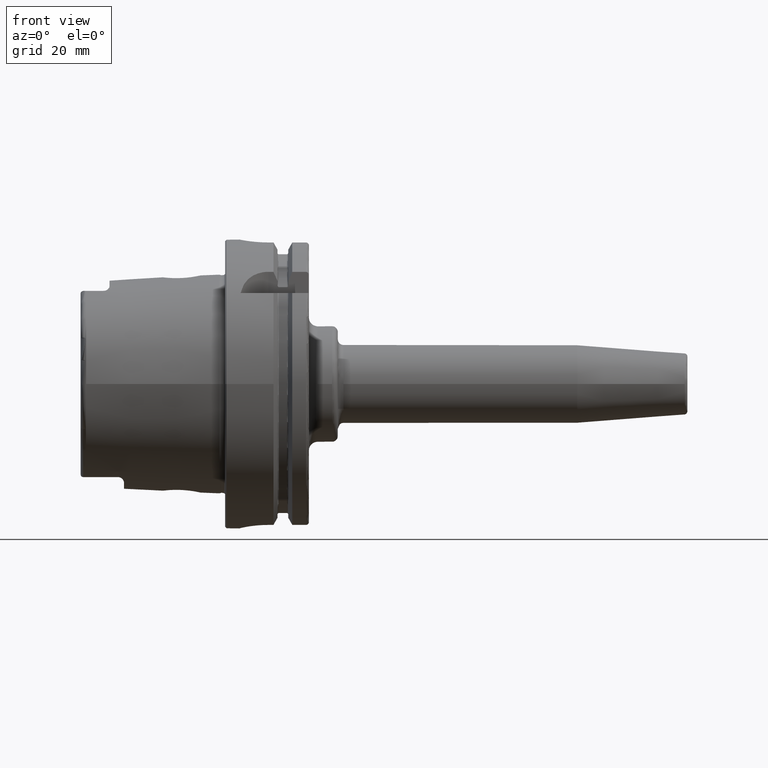
[diagram: clean part render]
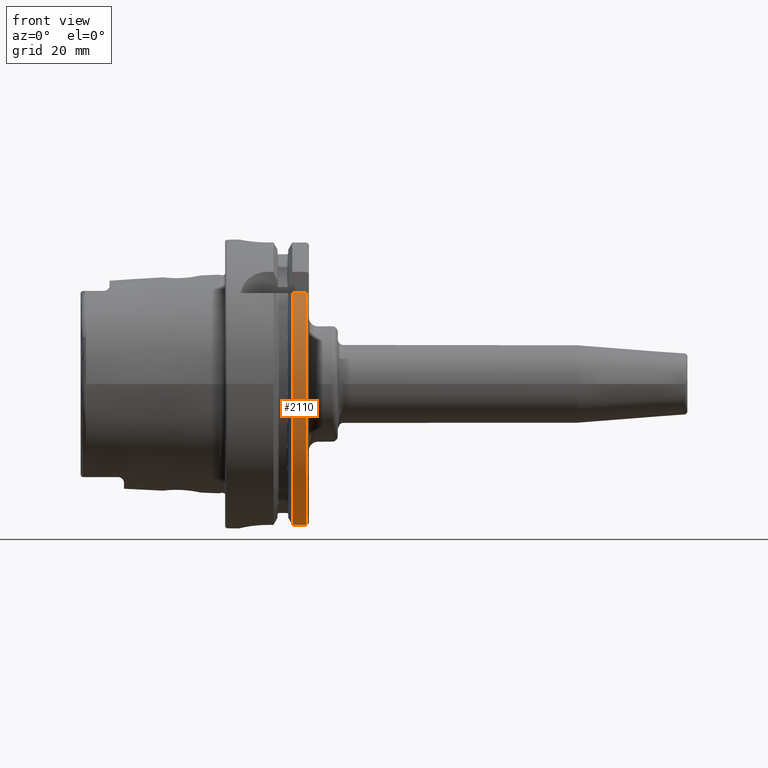
[diagram: same view with one face highlighted and labeled with its STEP entity id]
A machine part, front view. The second image highlights one B-rep face of the part: STEP entity #2110.
In plain terms, the highlighted cylindrical surface (partial cylindrical patch) has radius 50 mm, axis along (1, 0, 0).
Its self-contained STEP definition (entity closure, byte-faithful):
#198=CYLINDRICAL_SURFACE('',#2349,50.);
#280=FACE_OUTER_BOUND('',#414,.T.);
#414=EDGE_LOOP('',(#1751,#1752,#1753,#1754));
#532=LINE('',#4132,#640);
#550=LINE('',#4341,#658);
#640=VECTOR('',#2762,10.);
#658=VECTOR('',#2836,10.);
#774=CIRCLE('',#2346,50.);
#776=CIRCLE('',#2350,50.);
#962=VERTEX_POINT('',#4127);
#963=VERTEX_POINT('',#4131);
#995=VERTEX_POINT('',#4329);
#996=VERTEX_POINT('',#4340);
#1216=EDGE_CURVE('',#963,#962,#532,.T.);
#1264=EDGE_CURVE('',#996,#995,#550,.T.);
#1278=EDGE_CURVE('',#963,#995,#774,.T.);
#1281=EDGE_CURVE('',#962,#996,#776,.T.);
#1751=ORIENTED_EDGE('',*,*,#1216,.T.);
#1752=ORIENTED_EDGE('',*,*,#1281,.T.);
#1753=ORIENTED_EDGE('',*,*,#1264,.T.);
#1754=ORIENTED_EDGE('',*,*,#1278,.F.);
#2110=ADVANCED_FACE('',(#280),#198,.T.);
#2346=AXIS2_PLACEMENT_3D('',#4399,#2857,#2858);
#2349=AXIS2_PLACEMENT_3D('',#4404,#2864,#2865);
#2350=AXIS2_PLACEMENT_3D('',#4405,#2866,#2867);
#2762=DIRECTION('',(-1.,0.,0.));
#2836=DIRECTION('',(1.,0.,0.));
#2857=DIRECTION('center_axis',(1.,0.,0.));
#2858=DIRECTION('ref_axis',(0.,0.,-1.));
#2864=DIRECTION('center_axis',(1.,0.,0.));
#2865=DIRECTION('ref_axis',(0.,-0.94483222014474,-0.327554691275153));
#2866=DIRECTION('center_axis',(1.,0.,0.));
#2867=DIRECTION('ref_axis',(0.,0.,-1.));
#4127=CARTESIAN_POINT('',(23.2620290209214,-38.8297566307078,31.5));
#4131=CARTESIAN_POINT('',(28.,-38.8297566307078,31.5));
#4132=CARTESIAN_POINT('',(25.6310145104607,-38.8297566307078,31.5));
#4329=CARTESIAN_POINT('',(28.,-11.,-48.7749935930288));
#4340=CARTESIAN_POINT('',(23.2620290209214,-11.,-48.7749935930288));
#4341=CARTESIAN_POINT('',(25.6310145104607,-11.,-48.7749935930288));
#4399=CARTESIAN_POINT('Origin',(28.,0.,0.));
#4404=CARTESIAN_POINT('Origin',(25.6310145104607,0.,0.));
#4405=CARTESIAN_POINT('Origin',(23.2620290209214,0.,0.));